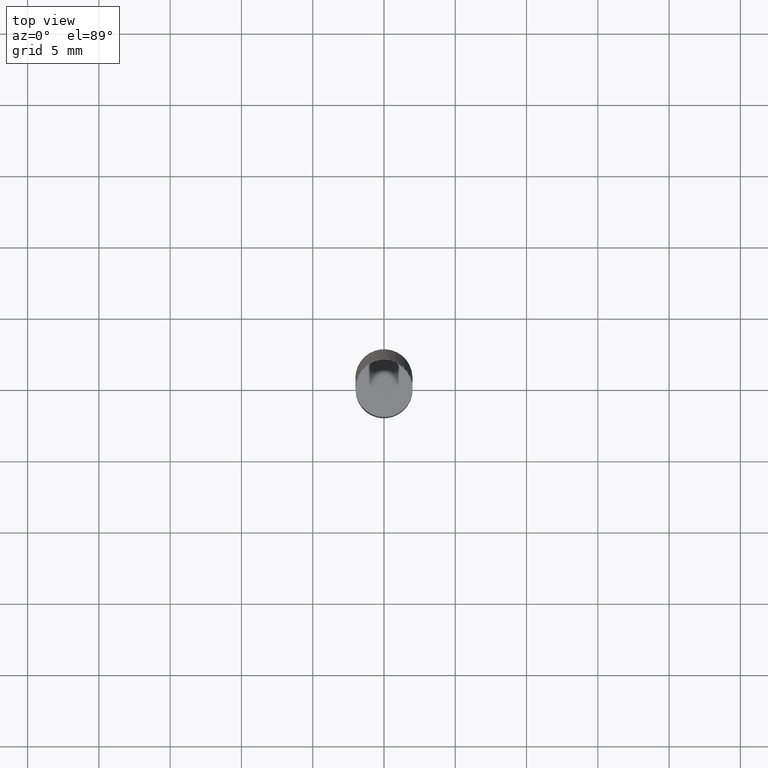
[diagram: clean part render]
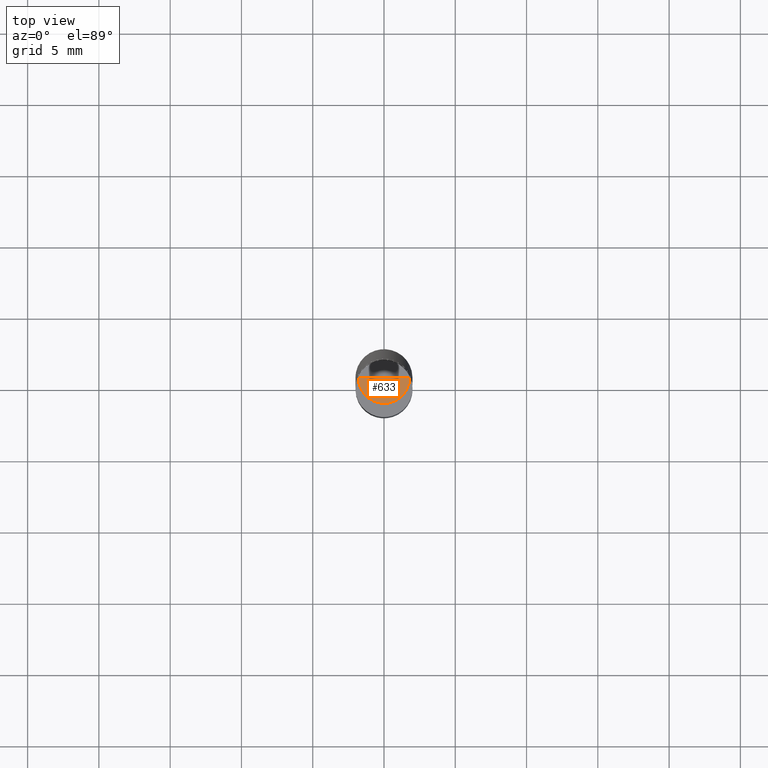
[diagram: same view with one face highlighted and labeled with its STEP entity id]
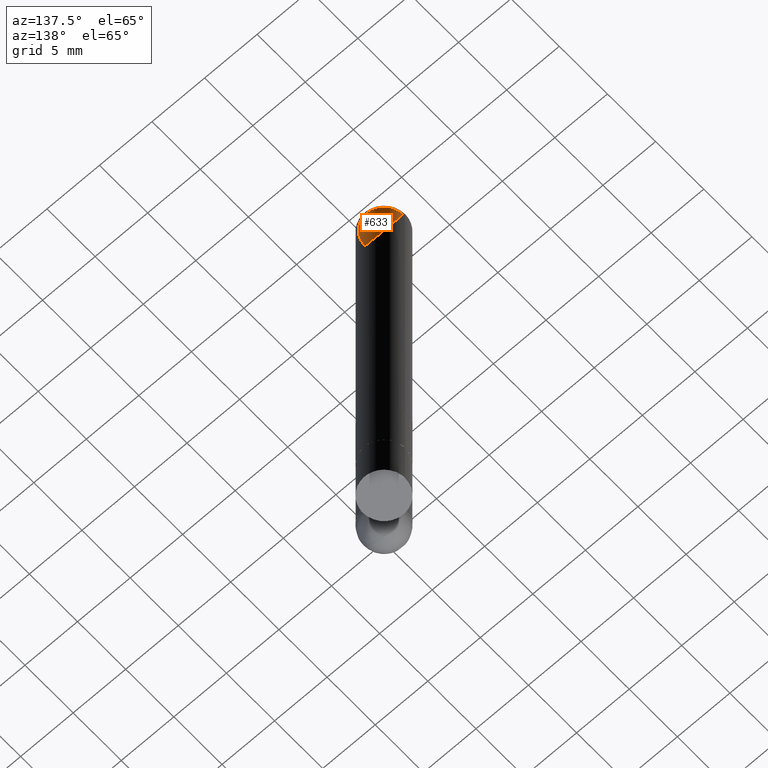
[diagram: same view with one face highlighted and labeled with its STEP entity id]
A machine part, top view. The second image highlights one B-rep face of the part: STEP entity #633.
A second angle (auxiliary view) of the same face is appended — the face is thin or edge-on in the first view.
In plain terms, the highlighted face is a freeform B-spline surface patch.
Its self-contained STEP definition (entity closure, byte-faithful):
#322=CARTESIAN_POINT('',(1.8,0.0,39.0));
#326=CARTESIAN_POINT('',(-1.8,0.0,39.0));
#327=CARTESIAN_POINT('',(0.0,0.0,39.0));
#334=CARTESIAN_POINT('',(-1.8,-1.8,39.0));
#335=CARTESIAN_POINT('',(0.0,-1.8,39.0));
#336=CARTESIAN_POINT('',(1.8,-1.8,39.0));
#618=(
BOUNDED_SURFACE()
B_SPLINE_SURFACE(1,2,(
(#326,#334,#335,#336,#322),
(#327,#327,#327,#327,#327)
), .UNSPECIFIED.,.F.,.F.,.F.)
B_SPLINE_SURFACE_WITH_KNOTS((2,2),(3,2,3),(
0.0,1.0),(
0.0,0.5,1.0), .UNSPECIFIED.)
GEOMETRIC_REPRESENTATION_ITEM()
RATIONAL_B_SPLINE_SURFACE(((1.0,0.707106781187,1.0,0.707106781187,1.0),
(1.0,0.707106781187,1.0,0.707106781187,1.0)
))
REPRESENTATION_ITEM('')
SURFACE()
);
#619=(
BOUNDED_CURVE()
B_SPLINE_CURVE(2,(#322,#336,#335,#334,#326),.UNSPECIFIED.,.F.,.F.)
B_SPLINE_CURVE_WITH_KNOTS((3,2,3),
(0.0,0.5,1.0),.UNSPECIFIED.)
CURVE()
GEOMETRIC_REPRESENTATION_ITEM()
RATIONAL_B_SPLINE_CURVE((1.0,0.707106781187,1.0,0.707106781187,1.0))
REPRESENTATION_ITEM('')
);
#620=(
BOUNDED_CURVE()
B_SPLINE_CURVE(1,(#326,#327),.UNSPECIFIED.,.F.,.F.)
B_SPLINE_CURVE_WITH_KNOTS((2,2),
(0.0,1.0),.UNSPECIFIED.)
CURVE()
GEOMETRIC_REPRESENTATION_ITEM()
RATIONAL_B_SPLINE_CURVE((1.0,1.0))
REPRESENTATION_ITEM('')
);
#621=(
BOUNDED_CURVE()
B_SPLINE_CURVE(1,(#327,#322),.UNSPECIFIED.,.F.,.F.)
B_SPLINE_CURVE_WITH_KNOTS((2,2),
(0.0,1.0),.UNSPECIFIED.)
CURVE()
GEOMETRIC_REPRESENTATION_ITEM()
RATIONAL_B_SPLINE_CURVE((1.0,1.0))
REPRESENTATION_ITEM('')
);
#622=VERTEX_POINT('',#322);
#623=VERTEX_POINT('',#326);
#624=VERTEX_POINT('',#327);
#625=EDGE_CURVE('',#622,#623,#619,.T.);
#626=EDGE_CURVE('',#623,#624,#620,.T.);
#627=EDGE_CURVE('',#624,#622,#621,.T.);
#628=ORIENTED_EDGE('',*,*,#625,.T.);
#629=ORIENTED_EDGE('',*,*,#626,.T.);
#630=ORIENTED_EDGE('',*,*,#627,.T.);
#631=EDGE_LOOP('',(#628,#629,#630));
#632=FACE_OUTER_BOUND('',#631,.T.);
#633=ADVANCED_FACE('',(#632),#618,.T.);